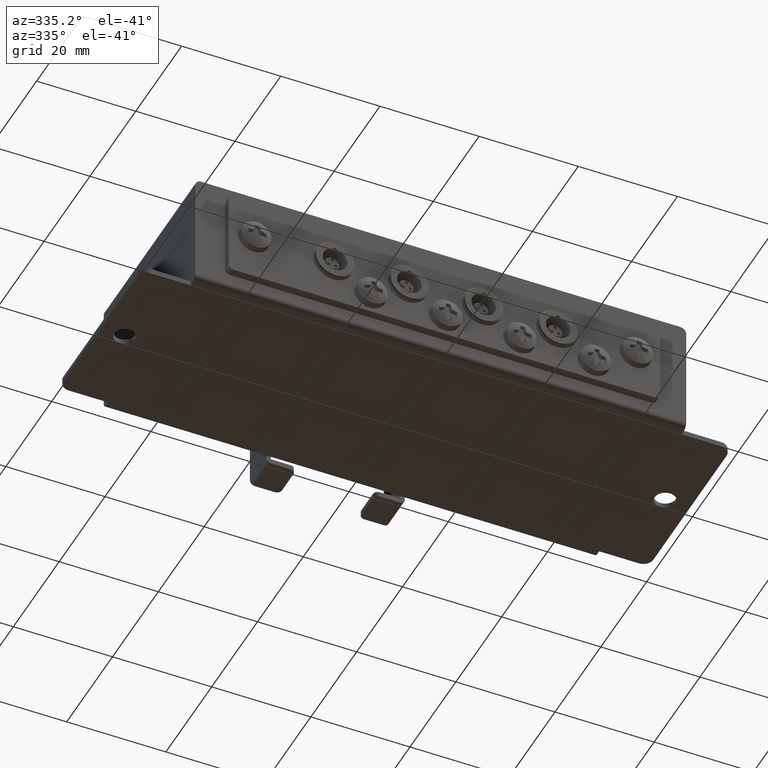
[diagram: clean part render]
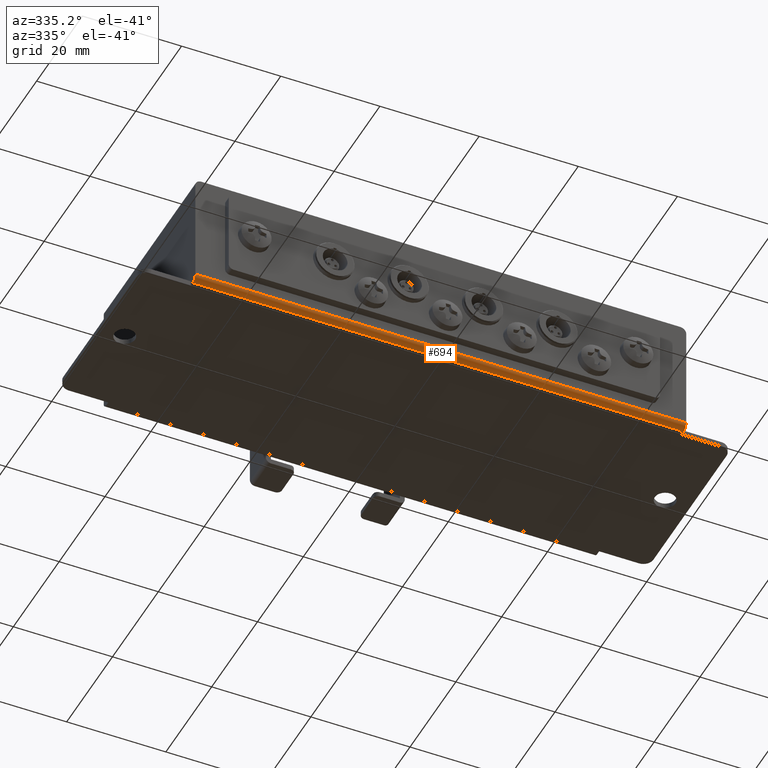
[diagram: same view with one face highlighted and labeled with its STEP entity id]
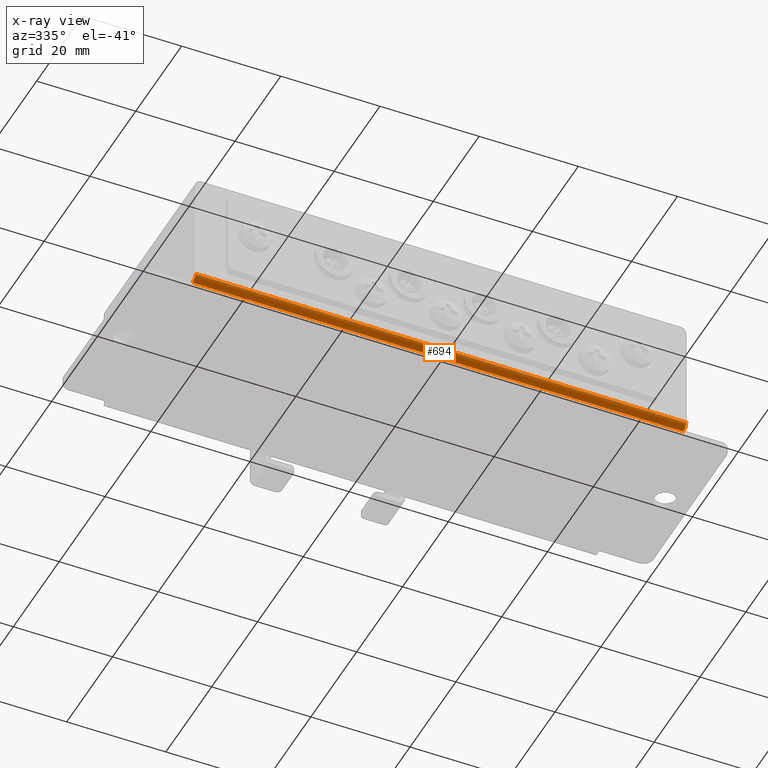
[diagram: x-ray of the same camera — body ghosted, the highlighted face saturated]
A machine part, auxiliary view. The second image highlights one B-rep face of the part: STEP entity #694.
The next image is the same camera in x-ray: the body ghosted, the highlighted face saturated — about 0% of this face is hidden behind the body in this view.
In plain terms, the highlighted cylindrical surface (edge-blend (fillet) strip) has radius 1.2 mm, axis along (1, -0, -0).
Its self-contained STEP definition (entity closure, byte-faithful):
#694 = ADVANCED_FACE( '', ( #1812 ), #1813, .T. );
#1812 = FACE_OUTER_BOUND( '', #3440, .T. );
#1813 = CYLINDRICAL_SURFACE( '', #3441, 1.20000000000000 );
#3440 = EDGE_LOOP( '', ( #5520, #5521, #5522, #5523 ) );
#3441 = AXIS2_PLACEMENT_3D( '', #5524, #5525, #5526 );
#5520 = ORIENTED_EDGE( '', *, *, #9661, .F. );
#5521 = ORIENTED_EDGE( '', *, *, #9662, .F. );
#5522 = ORIENTED_EDGE( '', *, *, #9663, .F. );
#5523 = ORIENTED_EDGE( '', *, *, #9347, .F. );
#5524 = CARTESIAN_POINT( '', ( -49.4999070000000, -18.7999855000000, -22.8000000000000 ) );
#5525 = DIRECTION( '', ( 1.00000000000000, -0.000000000000000, -0.000000000000000 ) );
#5526 = DIRECTION( '', ( 0.000000000000000, 0.000000000000000, 1.00000000000000 ) );
#9347 = EDGE_CURVE( '', #11159, #11150, #11161, .T. );
#9661 = EDGE_CURVE( '', #11704, #11159, #11705, .T. );
#9662 = EDGE_CURVE( '', #11706, #11704, #11707, .F. );
#9663 = EDGE_CURVE( '', #11150, #11706, #11708, .T. );
#11150 = VERTEX_POINT( '', #13806 );
#11159 = VERTEX_POINT( '', #13817 );
#11161 = LINE( '', #13820, #13821 );
#11704 = VERTEX_POINT( '', #14679 );
#11705 = CIRCLE( '', #14680, 1.20000000000000 );
#11706 = VERTEX_POINT( '', #14681 );
#11707 = LINE( '', #14682, #14683 );
#11708 = CIRCLE( '', #14684, 1.20000000000000 );
#13806 = CARTESIAN_POINT( '', ( 49.4999070000000, -19.9999855000000, -22.8000000000000 ) );
#13817 = CARTESIAN_POINT( '', ( -49.4999070000000, -19.9999855000000, -22.8000000000000 ) );
#13820 = CARTESIAN_POINT( '', ( 49.4999070000000, -19.9999855000000, -22.8000000000000 ) );
#13821 = VECTOR( '', #17681, 1000.00000000000 );
#14679 = CARTESIAN_POINT( '', ( -49.4999070000000, -18.7999855000000, -24.0000000000000 ) );
#14680 = AXIS2_PLACEMENT_3D( '', #18033, #18034, #18035 );
#14681 = CARTESIAN_POINT( '', ( 49.4999070000000, -18.7999855000000, -24.0000000000000 ) );
#14682 = CARTESIAN_POINT( '', ( -49.4999070000000, -18.7999855000000, -24.0000000000000 ) );
#14683 = VECTOR( '', #18036, 1000.00000000000 );
#14684 = AXIS2_PLACEMENT_3D( '', #18037, #18038, #18039 );
#17681 = DIRECTION( '', ( 1.00000000000000, 0.000000000000000, -0.000000000000000 ) );
#18033 = CARTESIAN_POINT( '', ( -49.4999070000000, -18.7999855000000, -22.8000000000000 ) );
#18034 = DIRECTION( '', ( -1.00000000000000, 0.000000000000000, 0.000000000000000 ) );
#18035 = DIRECTION( '', ( 0.000000000000000, 0.000000000000000, 1.00000000000000 ) );
#18036 = DIRECTION( '', ( 1.00000000000000, -0.000000000000000, 0.000000000000000 ) );
#18037 = CARTESIAN_POINT( '', ( 49.4999070000000, -18.7999855000000, -22.8000000000000 ) );
#18038 = DIRECTION( '', ( 1.00000000000000, 0.000000000000000, 0.000000000000000 ) );
#18039 = DIRECTION( '', ( 0.000000000000000, 0.000000000000000, -1.00000000000000 ) );